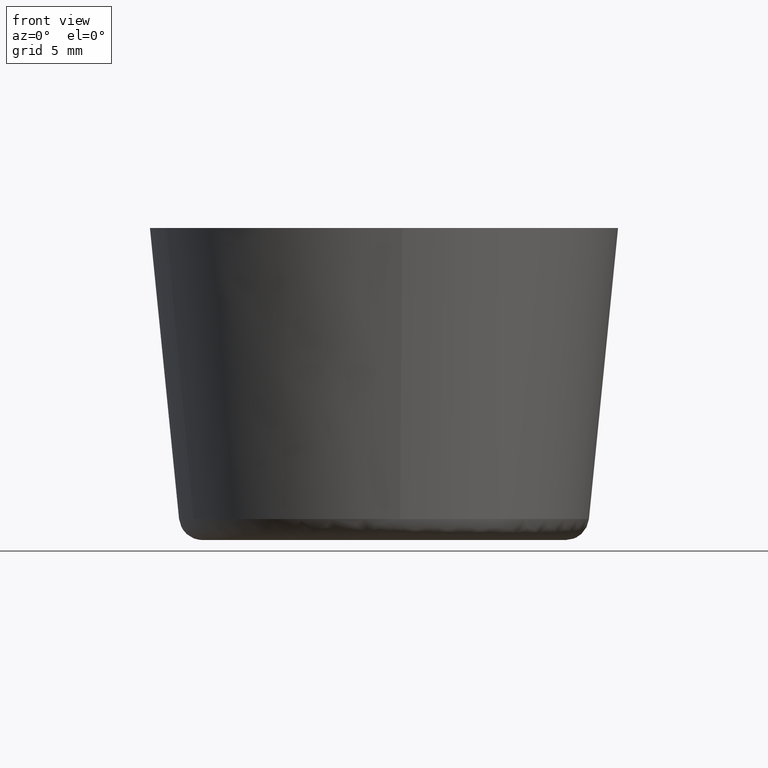
[diagram: clean part render]
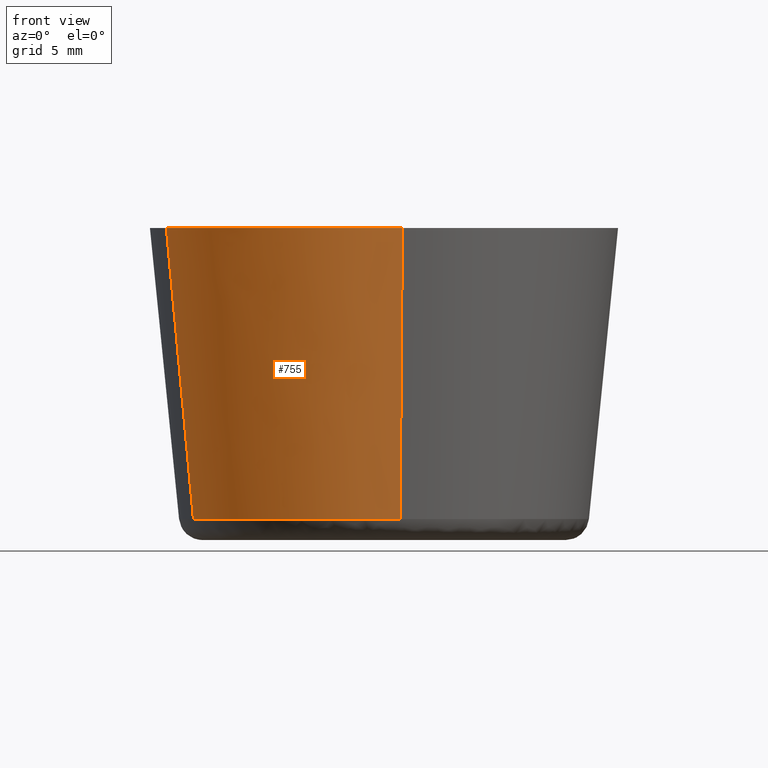
[diagram: same view with one face highlighted and labeled with its STEP entity id]
A machine part, front view. The second image highlights one B-rep face of the part: STEP entity #755.
In plain terms, the highlighted face is a freeform B-spline surface patch.
Its self-contained STEP definition (entity closure, byte-faithful):
#691=CARTESIAN_POINT('',(-12.170484751415133,-4.815272209996599,0.884513582186998));
#692=CARTESIAN_POINT('',(-8.612980301674860,-13.806779184154966,0.884513582186998));
#693=CARTESIAN_POINT('',(1.026908017833442,-13.048103519810960,0.884513582186998));
#694=CARTESIAN_POINT('',(-13.992403335263864,-5.536117279430917,20.477887160445327));
#695=CARTESIAN_POINT('',(-9.902341341474021,-15.873650643468268,20.477887160445327));
#696=CARTESIAN_POINT('',(1.180635896369789,-15.001401418151570,20.477887160445331));
#704=(BOUNDED_SURFACE()B_SPLINE_SURFACE(2,1,((#691,#694),(#692,#695),(#693,#696)),.UNSPECIFIED.,.F.,.F.,.U.)B_SPLINE_SURFACE_WITH_KNOTS((3,3),(2,2),(0.0,19.809642269419701),(0.0,19.691096798235819),.UNSPECIFIED.)GEOMETRIC_REPRESENTATION_ITEM()RATIONAL_B_SPLINE_SURFACE(((0.906274169979695,0.906274169979695),(0.765685424949238,0.765685424949238),(1.0,1.0)))REPRESENTATION_ITEM('')SURFACE());
#705=CARTESIAN_POINT('',(1.030555621959290,-13.094583491800741,1.350742231963600));
#706=VERTEX_POINT('',#705);
#707=CARTESIAN_POINT('',(-12.213839723886680,-4.832419833118689,1.350742433918875));
#708=VERTEX_POINT('',#707);
#709=CARTESIAN_POINT('',(1.030555621959290,-13.094583491800739,1.350742231963600));
#710=CARTESIAN_POINT('',(0.516073231781699,-13.135073728872834,1.350742237333666));
#711=CARTESIAN_POINT('',(-7.493435E-009,-13.135073733965189,1.350742242998451));
#712=CARTESIAN_POINT('',(-8.928885143544781,-13.135073822070973,1.350742341008227));
#713=CARTESIAN_POINT('',(-12.213839723886680,-4.832419833118689,1.350742433918874));
#721=(BOUNDED_CURVE()B_SPLINE_CURVE(2,(#709,#710,#711,#712,#713),.UNSPECIFIED.,.F.,.U.)B_SPLINE_CURVE_WITH_KNOTS((3,2,3),(0.736331436581265,0.750000000000000,0.937532615029448),.UNSPECIFIED.)CURVE()GEOMETRIC_REPRESENTATION_ITEM()RATIONAL_B_SPLINE_CURVE((0.969723639886132,0.983986281854923,1.0,0.780291875006084,0.890203263798775))REPRESENTATION_ITEM(''));
#722=EDGE_CURVE('',#706,#708,#721,.T.);
#723=ORIENTED_EDGE('',*,*,#722,.F.);
#724=CARTESIAN_POINT('',(1.176877817785791,-14.953760451905559,19.999997683682370));
#725=VERTEX_POINT('',#724);
#726=CARTESIAN_POINT('',(1.030555621959290,-13.094583491800741,1.350742231963600));
#727=CARTESIAN_POINT('',(1.176877817785791,-14.953760451905559,19.999997683682370));
#728=QUASI_UNIFORM_CURVE('',1,(#726,#727),.UNSPECIFIED.,.F.,.U.);
#729=EDGE_CURVE('',#706,#725,#728,.T.);
#730=ORIENTED_EDGE('',*,*,#729,.T.);
#731=CARTESIAN_POINT('',(-13.947968010895551,-5.518530671019443,19.999997466659359));
#732=VERTEX_POINT('',#731);
#733=CARTESIAN_POINT('',(1.176877817785791,-14.953760451905552,19.999997683682377));
#734=CARTESIAN_POINT('',(0.589347273754645,-14.999999772741710,19.999997677911637));
#735=CARTESIAN_POINT('',(-4.309222E-009,-14.999999776604669,19.999997671824179));
#736=CARTESIAN_POINT('',(-10.196613181655882,-14.999999843439703,19.999997566501975));
#737=CARTESIAN_POINT('',(-13.947968010895554,-5.518530671019443,19.999997466659359));
#745=(BOUNDED_CURVE()B_SPLINE_CURVE(2,(#733,#734,#735,#736,#737),.UNSPECIFIED.,.F.,.U.)B_SPLINE_CURVE_WITH_KNOTS((3,2,3),(0.736331399219582,0.750000000000000,0.937532605541042),.UNSPECIFIED.)CURVE()GEOMETRIC_REPRESENTATION_ITEM()RATIONAL_B_SPLINE_CURVE((0.969723561915069,0.983986238082989,1.0,0.780291886122443,0.890203252676616))REPRESENTATION_ITEM(''));
#746=EDGE_CURVE('',#725,#732,#745,.T.);
#747=ORIENTED_EDGE('',*,*,#746,.T.);
#748=CARTESIAN_POINT('',(-12.213839723886680,-4.832419833118689,1.350742433918875));
#749=CARTESIAN_POINT('',(-13.947968010895551,-5.518530671019443,19.999997466659359));
#750=QUASI_UNIFORM_CURVE('',1,(#748,#749),.UNSPECIFIED.,.F.,.U.);
#751=EDGE_CURVE('',#708,#732,#750,.T.);
#752=ORIENTED_EDGE('',*,*,#751,.F.);
#753=EDGE_LOOP('',(#723,#730,#747,#752));
#754=FACE_OUTER_BOUND('',#753,.T.);
#755=ADVANCED_FACE('',(#754),#704,.T.);